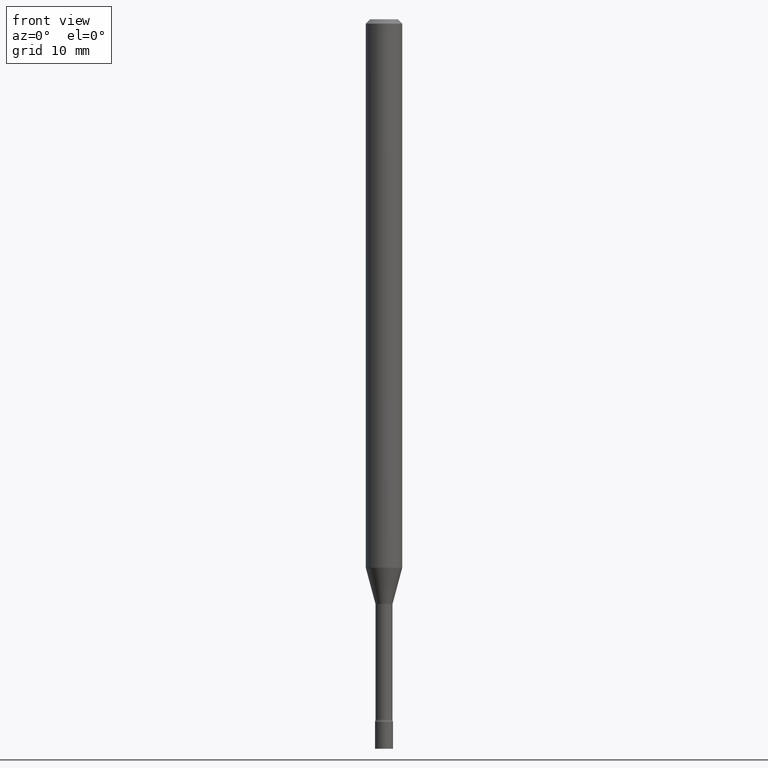
[diagram: clean part render]
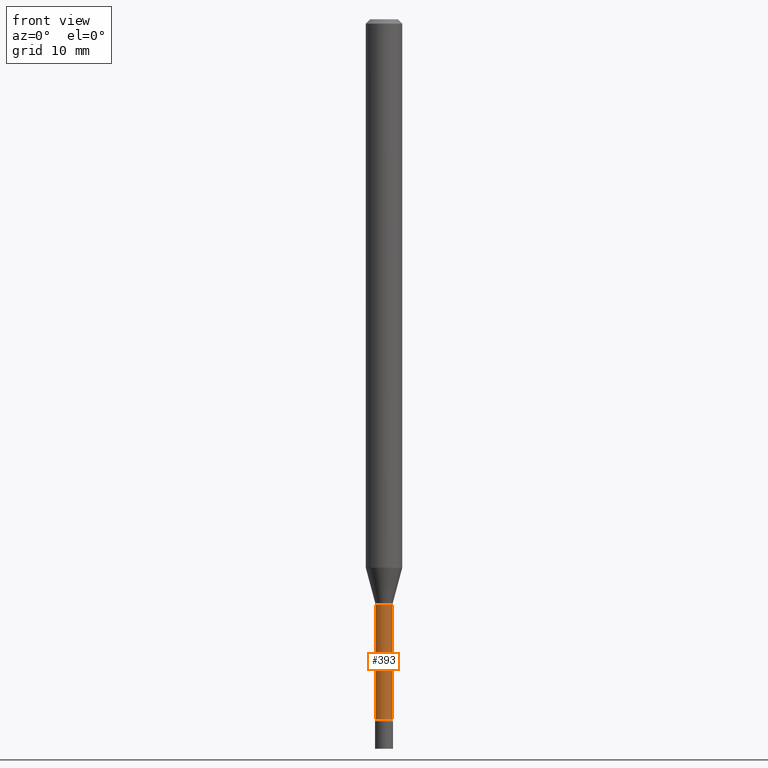
[diagram: same view with one face highlighted and labeled with its STEP entity id]
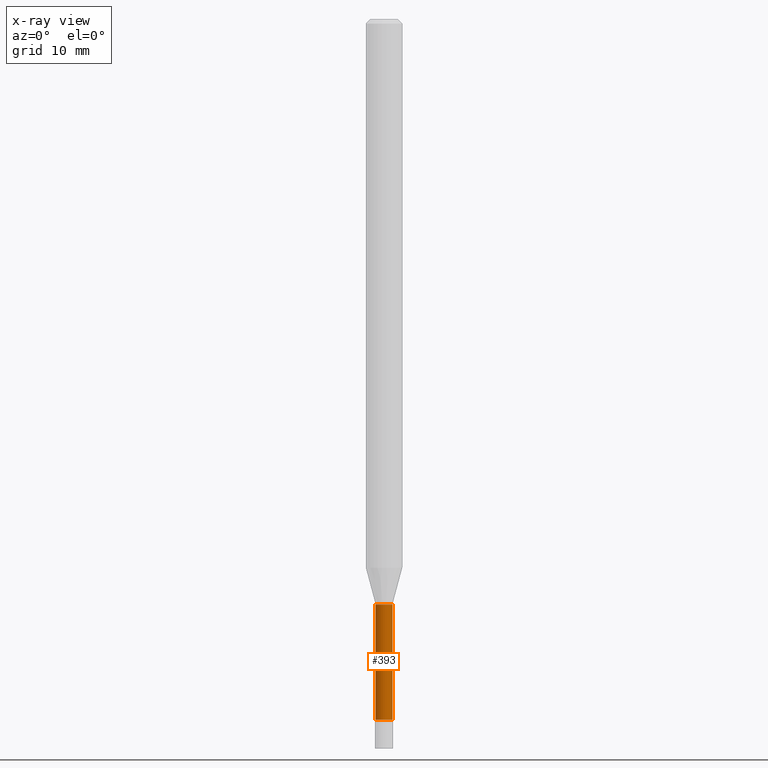
[diagram: x-ray of the same camera — body ghosted, the highlighted face saturated]
A machine part, front view. The second image highlights one B-rep face of the part: STEP entity #393.
The next image is the same camera in x-ray: the body ghosted, the highlighted face saturated — about 0% of this face is hidden behind the body in this view.
In plain terms, the highlighted cylindrical surface (edge-blend (fillet) strip) has radius 0.7404 mm, axis along (-0, 0, 1).
Its self-contained STEP definition (entity closure, byte-faithful):
#8 = CIRCLE ( 'NONE', #73, 0.02914999999999999883 ) ;
#19 = VECTOR ( 'NONE', #69, 39.37007874015748143 ) ;
#59 = EDGE_CURVE ( 'NONE', #62, #496, #505, .T. ) ;
#62 = VERTEX_POINT ( 'NONE', #351 ) ;
#69 = DIRECTION ( 'NONE',  ( -2.445468806185136877E-29, 3.491481338843145188E-15, 1.000000000000000000 ) ) ;
#72 = ORIENTED_EDGE ( 'NONE', *, *, #59, .F. ) ;
#73 = AXIS2_PLACEMENT_3D ( 'NONE', #461, #352, #100 ) ;
#81 = FACE_OUTER_BOUND ( 'NONE', #141, .T. ) ;
#82 = EDGE_CURVE ( 'NONE', #385, #215, #427, .T. ) ;
#100 = DIRECTION ( 'NONE',  ( 1.000000000000000000, -6.982962677686268288E-15, 0.000000000000000000 ) ) ;
#118 = VECTOR ( 'NONE', #429, 39.37007874015748143 ) ;
#141 = EDGE_LOOP ( 'NONE', ( #72, #177, #238, #143 ) ) ;
#143 = ORIENTED_EDGE ( 'NONE', *, *, #216, .F. ) ;
#153 = DIRECTION ( 'NONE',  ( -2.445468806185136597E-29, 3.491481338843145583E-15, 1.000000000000000000 ) ) ;
#177 = ORIENTED_EDGE ( 'NONE', *, *, #426, .T. ) ;
#215 = VERTEX_POINT ( 'NONE', #348 ) ;
#216 = EDGE_CURVE ( 'NONE', #496, #215, #8, .T. ) ;
#237 = CYLINDRICAL_SURFACE ( 'NONE', #285, 0.02915000000000000230 ) ;
#238 = ORIENTED_EDGE ( 'NONE', *, *, #82, .T. ) ;
#239 = CARTESIAN_POINT ( 'NONE',  ( 0.000000000000000000, 0.000000000000000000, 0.000000000000000000 ) ) ;
#243 = DIRECTION ( 'NONE',  ( 1.000000000000000000, -6.982962677686266711E-15, 4.876176775795936353E-29 ) ) ;
#274 = CIRCLE ( 'NONE', #472, 0.02915000000000000577 ) ;
#285 = AXIS2_PLACEMENT_3D ( 'NONE', #239, #153, #243 ) ;
#288 = CARTESIAN_POINT ( 'NONE',  ( 5.868595753920427457E-29, -8.378799397564700895E-15, -2.399783525791634897 ) ) ;
#348 = CARTESIAN_POINT ( 'NONE',  ( 0.02914999999999999883, -7.207376898674296122E-15, -2.005974787463811193 ) ) ;
#351 = CARTESIAN_POINT ( 'NONE',  ( -0.02915000000000000577, -8.177701762300226909E-15, -2.399783525791634897 ) ) ;
#352 = DIRECTION ( 'NONE',  ( -2.445468806185136597E-29, 3.491481338843145583E-15, 1.000000000000000000 ) ) ;
#353 = CARTESIAN_POINT ( 'NONE',  ( -0.02914999999999999883, -7.484188259618152031E-15, -2.005974787463811193 ) ) ;
#357 = CARTESIAN_POINT ( 'NONE',  ( 0.02915000000000000577, -8.582352759619256888E-15, -2.399783525791634897 ) ) ;
#385 = VERTEX_POINT ( 'NONE', #357 ) ;
#388 = CARTESIAN_POINT ( 'NONE',  ( 0.02915000000000000230, -2.035533620545546870E-16, 1.421405530144515533E-30 ) ) ;
#393 = ADVANCED_FACE ( 'NONE', ( #81 ), #237, .T. ) ;
#395 = DIRECTION ( 'NONE',  ( 1.000000000000000000, -6.982962677686266711E-15, 0.000000000000000000 ) ) ;
#426 = EDGE_CURVE ( 'NONE', #62, #385, #274, .T. ) ;
#427 = LINE ( 'NONE', #388, #19 ) ;
#429 = DIRECTION ( 'NONE',  ( -2.445468806185136877E-29, 3.491481338843145188E-15, 1.000000000000000000 ) ) ;
#461 = CARTESIAN_POINT ( 'NONE',  ( 4.905548768736609857E-29, -7.003823536619741706E-15, -2.005974787463811193 ) ) ;
#464 = CARTESIAN_POINT ( 'NONE',  ( -0.02915000000000000230, 2.071232074740692205E-16, -1.433869578809305304E-30 ) ) ;
#472 = AXIS2_PLACEMENT_3D ( 'NONE', #288, #519, #395 ) ;
#496 = VERTEX_POINT ( 'NONE', #353 ) ;
#505 = LINE ( 'NONE', #464, #118 ) ;
#519 = DIRECTION ( 'NONE',  ( -2.445468806185136597E-29, 3.491481338843145583E-15, 1.000000000000000000 ) ) ;